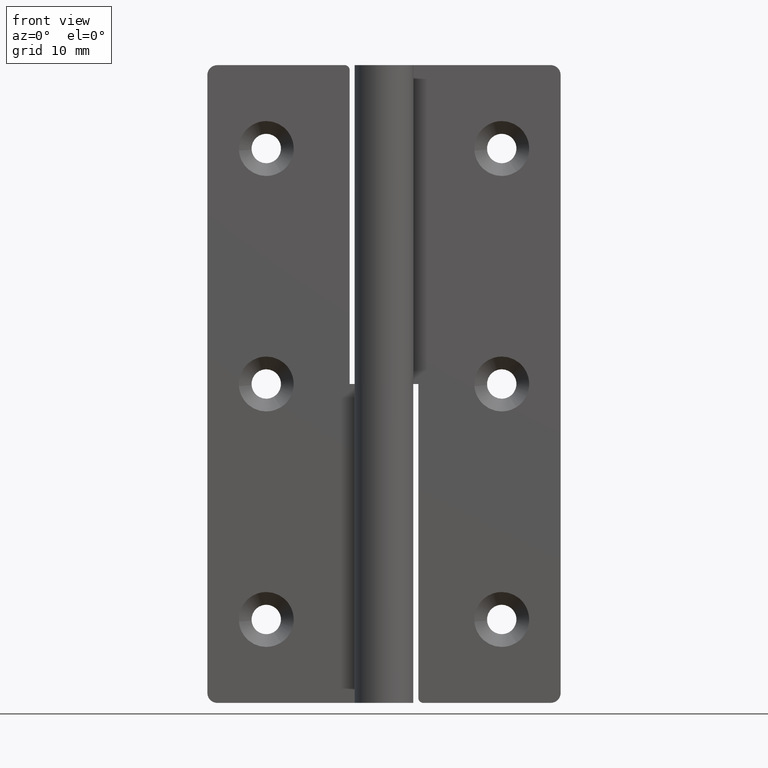
[diagram: clean part render]
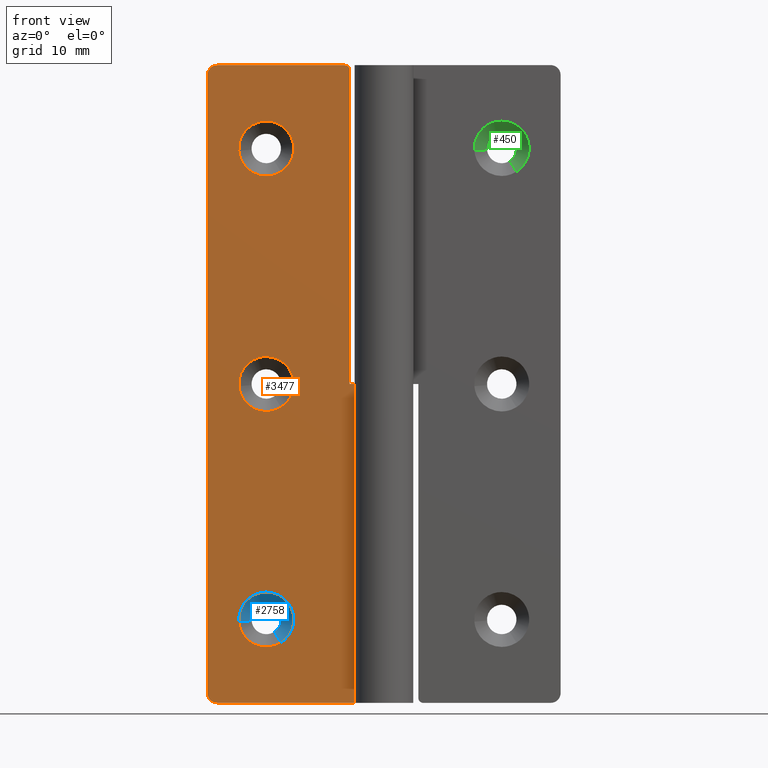
[diagram: same view with three faces highlighted in distinct colors, each labeled with its STEP entity id]
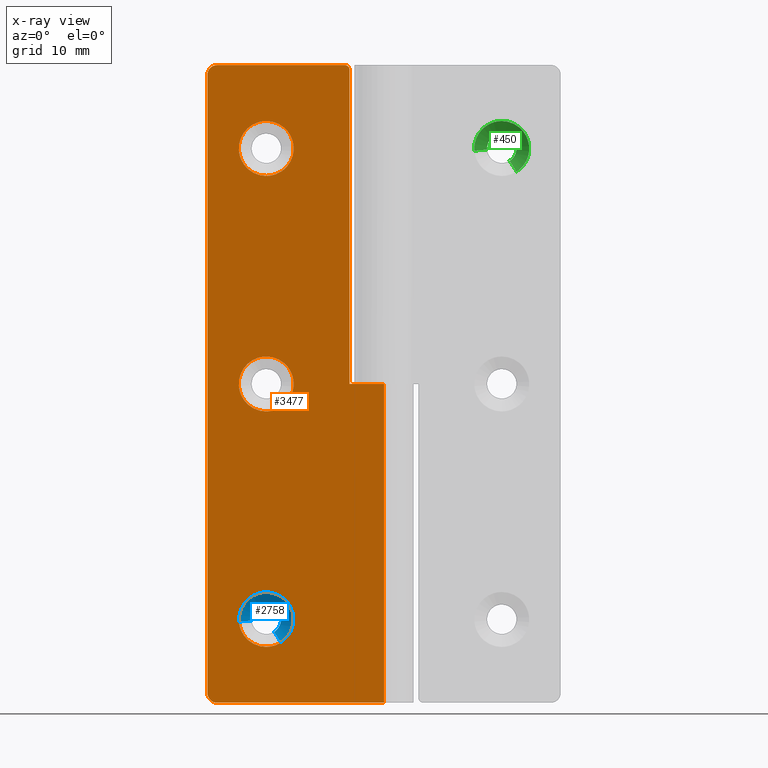
[diagram: x-ray of the same camera — body ghosted, the three highlighted faces saturated]
A machine part, front view with three faces highlighted in distinct colors.
The next image is the same camera in x-ray (body ghosted, the three faces saturated) — at least one of them is partly hidden behind the body in this view.
Their STEP definitions:

[orange] entity #3477 — the highlighted face is a freeform B-spline surface patch.
#1975=CARTESIAN_POINT('',(-10.494017771738090,1.499999999987748,54.139487853243473));
#1976=VERTEX_POINT('',#1975);
#1982=CARTESIAN_POINT('',(-12.0,1.500000000000000,59.300000011920929));
#1983=VERTEX_POINT('',#1982);
#1984=CARTESIAN_POINT('',(-12.0,1.500000000000000,59.300000011920929));
#1985=CARTESIAN_POINT('',(-9.199999988079071,1.500000000000000,59.300000011920943));
#1986=CARTESIAN_POINT('',(-9.199999988079071,1.500000000000000,56.500000000000000));
#1987=CARTESIAN_POINT('',(-9.199999988079071,1.500000000000000,54.965057756923521));
#1988=CARTESIAN_POINT('',(-10.494017771738088,1.499999999987747,54.139487853243466));
#1996=(BOUNDED_CURVE()B_SPLINE_CURVE(2,(#1984,#1985,#1986,#1987,#1988),.UNSPECIFIED.,.F.,.U.)B_SPLINE_CURVE_WITH_KNOTS((3,2,3),(0.0,0.250000000000000,0.407950112602438),.UNSPECIFIED.)CURVE()GEOMETRIC_REPRESENTATION_ITEM()RATIONAL_B_SPLINE_CURVE((1.0,0.707106781186548,1.0,0.814949932431699,0.863729296939413))REPRESENTATION_ITEM(''));
#1997=EDGE_CURVE('',#1983,#1976,#1996,.T.);
#1999=CARTESIAN_POINT('',(-14.791368546357489,1.499999999947906,56.280314530623890));
#2000=VERTEX_POINT('',#1999);
#2001=CARTESIAN_POINT('',(-14.791368546357495,1.499999999947907,56.280314530623890));
#2002=CARTESIAN_POINT('',(-14.800000011920929,1.500000000000000,56.389987699509554));
#2003=CARTESIAN_POINT('',(-14.800000011920931,1.500000000000000,56.500000000000000));
#2004=CARTESIAN_POINT('',(-14.800000011920924,1.500000000000000,59.300000011920943));
#2005=CARTESIAN_POINT('',(-12.0,1.500000000000000,59.300000011920929));
#2013=(BOUNDED_CURVE()B_SPLINE_CURVE(2,(#2001,#2002,#2003,#2004,#2005),.UNSPECIFIED.,.F.,.U.)B_SPLINE_CURVE_WITH_KNOTS((3,2,3),(0.736331300583791,0.750000000000000,1.0),.UNSPECIFIED.)CURVE()GEOMETRIC_REPRESENTATION_ITEM()RATIONAL_B_SPLINE_CURVE((0.969723356069606,0.983986122523972,1.0,0.707106781186548,1.0))REPRESENTATION_ITEM(''));
#2014=EDGE_CURVE('',#2000,#1983,#2013,.T.);
#2118=CARTESIAN_POINT('',(-12.0,1.500000000000000,53.699999988079078));
#2119=VERTEX_POINT('',#2118);
#2120=CARTESIAN_POINT('',(-12.0,1.500000000000000,53.699999988079078));
#2121=CARTESIAN_POINT('',(-14.588293386920791,1.500000000000000,53.699999988079064));
#2122=CARTESIAN_POINT('',(-14.791368546357486,1.499999999947907,56.280314530623890));
#2130=(BOUNDED_CURVE()B_SPLINE_CURVE(2,(#2120,#2121,#2122),.UNSPECIFIED.,.F.,.U.)B_SPLINE_CURVE_WITH_KNOTS((3,3),(0.500000000000000,0.736331300583790),.UNSPECIFIED.)CURVE()GEOMETRIC_REPRESENTATION_ITEM()RATIONAL_B_SPLINE_CURVE((1.0,0.723120658662577,0.969723356069604))REPRESENTATION_ITEM(''));
#2131=EDGE_CURVE('',#2119,#2000,#2130,.T.);
#2133=CARTESIAN_POINT('',(-10.494017771738088,1.499999999987747,54.139487853243466));
#2134=CARTESIAN_POINT('',(-11.182881441209132,1.500000000000001,53.699999988079078));
#2135=CARTESIAN_POINT('',(-12.0,1.500000000000000,53.699999988079078));
#2143=(BOUNDED_CURVE()B_SPLINE_CURVE(2,(#2133,#2134,#2135),.UNSPECIFIED.,.F.,.U.)B_SPLINE_CURVE_WITH_KNOTS((3,3),(0.407950112602438,0.500000000000000),.UNSPECIFIED.)CURVE()GEOMETRIC_REPRESENTATION_ITEM()RATIONAL_B_SPLINE_CURVE((0.863729296939413,0.892156848754848,1.0))REPRESENTATION_ITEM(''));
#2144=EDGE_CURVE('',#1976,#2119,#2143,.T.);
#2319=CARTESIAN_POINT('',(-10.494017771738090,1.499999999987746,30.139487853243470));
#2320=VERTEX_POINT('',#2319);
#2326=CARTESIAN_POINT('',(-12.0,1.500000000000000,35.300000011920943));
#2327=VERTEX_POINT('',#2326);
#2328=CARTESIAN_POINT('',(-12.0,1.500000000000000,35.300000011920943));
#2329=CARTESIAN_POINT('',(-9.199999988079071,1.500000000000000,35.300000011920929));
#2330=CARTESIAN_POINT('',(-9.199999988079071,1.500000000000000,32.500000000000000));
#2331=CARTESIAN_POINT('',(-9.199999988079071,1.500000000000000,30.965057756923510));
#2332=CARTESIAN_POINT('',(-10.494017771738088,1.499999999987746,30.139487853243462));
#2340=(BOUNDED_CURVE()B_SPLINE_CURVE(2,(#2328,#2329,#2330,#2331,#2332),.UNSPECIFIED.,.F.,.U.)B_SPLINE_CURVE_WITH_KNOTS((3,2,3),(0.0,0.250000000000000,0.407950112602438),.UNSPECIFIED.)CURVE()GEOMETRIC_REPRESENTATION_ITEM()RATIONAL_B_SPLINE_CURVE((1.0,0.707106781186548,1.0,0.814949932431699,0.863729296939413))REPRESENTATION_ITEM(''));
#2341=EDGE_CURVE('',#2327,#2320,#2340,.T.);
#2343=CARTESIAN_POINT('',(-14.791368546357489,1.499999999947906,32.280314530623890));
#2344=VERTEX_POINT('',#2343);
#2345=CARTESIAN_POINT('',(-14.791368546357491,1.499999999947906,32.280314530623890));
#2346=CARTESIAN_POINT('',(-14.800000011920927,1.500000000000000,32.389987699509540));
#2347=CARTESIAN_POINT('',(-14.800000011920931,1.500000000000000,32.500000000000000));
#2348=CARTESIAN_POINT('',(-14.800000011920924,1.500000000000000,35.300000011920929));
#2349=CARTESIAN_POINT('',(-12.0,1.500000000000000,35.300000011920943));
#2357=(BOUNDED_CURVE()B_SPLINE_CURVE(2,(#2345,#2346,#2347,#2348,#2349),.UNSPECIFIED.,.F.,.U.)B_SPLINE_CURVE_WITH_KNOTS((3,2,3),(0.736331300583791,0.750000000000000,1.0),.UNSPECIFIED.)CURVE()GEOMETRIC_REPRESENTATION_ITEM()RATIONAL_B_SPLINE_CURVE((0.969723356069606,0.983986122523972,1.0,0.707106781186548,1.0))REPRESENTATION_ITEM(''));
#2358=EDGE_CURVE('',#2344,#2327,#2357,.T.);
#2462=CARTESIAN_POINT('',(-12.0,1.500000000000000,29.699999988079071));
#2463=VERTEX_POINT('',#2462);
#2464=CARTESIAN_POINT('',(-12.0,1.500000000000000,29.699999988079071));
#2465=CARTESIAN_POINT('',(-14.588293386920826,1.500000000000000,29.699999988079064));
#2466=CARTESIAN_POINT('',(-14.791368546357491,1.499999999947906,32.280314530623890));
#2474=(BOUNDED_CURVE()B_SPLINE_CURVE(2,(#2464,#2465,#2466),.UNSPECIFIED.,.F.,.U.)B_SPLINE_CURVE_WITH_KNOTS((3,3),(0.500000000000000,0.736331300583792),.UNSPECIFIED.)CURVE()GEOMETRIC_REPRESENTATION_ITEM()RATIONAL_B_SPLINE_CURVE((1.0,0.723120658662575,0.969723356069608))REPRESENTATION_ITEM(''));
#2475=EDGE_CURVE('',#2463,#2344,#2474,.T.);
#2477=CARTESIAN_POINT('',(-10.494017771738088,1.499999999987746,30.139487853243462));
#2478=CARTESIAN_POINT('',(-11.182881441209130,1.500000000000001,29.699999988079075));
#2479=CARTESIAN_POINT('',(-12.0,1.500000000000000,29.699999988079071));
#2487=(BOUNDED_CURVE()B_SPLINE_CURVE(2,(#2477,#2478,#2479),.UNSPECIFIED.,.F.,.U.)B_SPLINE_CURVE_WITH_KNOTS((3,3),(0.407950112602438,0.500000000000000),.UNSPECIFIED.)CURVE()GEOMETRIC_REPRESENTATION_ITEM()RATIONAL_B_SPLINE_CURVE((0.863729296939413,0.892156848754848,1.0))REPRESENTATION_ITEM(''));
#2488=EDGE_CURVE('',#2320,#2463,#2487,.T.);
#2663=CARTESIAN_POINT('',(-10.494017771738090,1.499999999987748,6.139487853243372));
#2664=VERTEX_POINT('',#2663);
#2670=CARTESIAN_POINT('',(-12.0,1.500000000000000,11.300000011920829));
#2671=VERTEX_POINT('',#2670);
#2672=CARTESIAN_POINT('',(-12.0,1.500000000000000,11.300000011920829));
#2673=CARTESIAN_POINT('',(-9.199999988079071,1.500000000000000,11.300000011920828));
#2674=CARTESIAN_POINT('',(-9.199999988079071,1.500000000000000,8.499999999999901));
#2675=CARTESIAN_POINT('',(-9.199999988079071,1.500000000000000,6.965057756923418));
#2676=CARTESIAN_POINT('',(-10.494017771738090,1.499999999987747,6.139487853243371));
#2684=(BOUNDED_CURVE()B_SPLINE_CURVE(2,(#2672,#2673,#2674,#2675,#2676),.UNSPECIFIED.,.F.,.U.)B_SPLINE_CURVE_WITH_KNOTS((3,2,3),(0.0,0.250000000000000,0.407950112602438),.UNSPECIFIED.)CURVE()GEOMETRIC_REPRESENTATION_ITEM()RATIONAL_B_SPLINE_CURVE((1.0,0.707106781186548,1.0,0.814949932431699,0.863729296939413))REPRESENTATION_ITEM(''));
#2685=EDGE_CURVE('',#2671,#2664,#2684,.T.);
#2687=CARTESIAN_POINT('',(-14.791368546357489,1.499999999947906,8.280314530623793));
#2688=VERTEX_POINT('',#2687);
#2689=CARTESIAN_POINT('',(-14.791368546357496,1.499999999947906,8.280314530623793));
#2690=CARTESIAN_POINT('',(-14.800000011920931,1.500000000000000,8.389987699509451));
#2691=CARTESIAN_POINT('',(-14.800000011920931,1.500000000000000,8.499999999999901));
#2692=CARTESIAN_POINT('',(-14.800000011920924,1.500000000000000,11.300000011920828));
#2693=CARTESIAN_POINT('',(-12.0,1.500000000000000,11.300000011920829));
#2701=(BOUNDED_CURVE()B_SPLINE_CURVE(2,(#2689,#2690,#2691,#2692,#2693),.UNSPECIFIED.,.F.,.U.)B_SPLINE_CURVE_WITH_KNOTS((3,2,3),(0.736331300583791,0.750000000000000,1.0),.UNSPECIFIED.)CURVE()GEOMETRIC_REPRESENTATION_ITEM()RATIONAL_B_SPLINE_CURVE((0.969723356069606,0.983986122523972,1.0,0.707106781186548,1.0))REPRESENTATION_ITEM(''));
#2702=EDGE_CURVE('',#2688,#2671,#2701,.T.);
#2806=CARTESIAN_POINT('',(-12.0,1.500000000000000,5.699999988078970));
#2807=VERTEX_POINT('',#2806);
#2808=CARTESIAN_POINT('',(-12.0,1.500000000000000,5.699999988078970));
#2809=CARTESIAN_POINT('',(-14.588293386920791,1.500000000000000,5.699999988078969));
#2810=CARTESIAN_POINT('',(-14.791368546357496,1.499999999947906,8.280314530623793));
#2818=(BOUNDED_CURVE()B_SPLINE_CURVE(2,(#2808,#2809,#2810),.UNSPECIFIED.,.F.,.U.)B_SPLINE_CURVE_WITH_KNOTS((3,3),(0.500000000000000,0.736331300583790),.UNSPECIFIED.)CURVE()GEOMETRIC_REPRESENTATION_ITEM()RATIONAL_B_SPLINE_CURVE((1.0,0.723120658662577,0.969723356069604))REPRESENTATION_ITEM(''));
#2819=EDGE_CURVE('',#2807,#2688,#2818,.T.);
#2821=CARTESIAN_POINT('',(-10.494017771738090,1.499999999987747,6.139487853243371));
#2822=CARTESIAN_POINT('',(-11.182881441209132,1.500000000000000,5.699999988078970));
#2823=CARTESIAN_POINT('',(-12.0,1.500000000000000,5.699999988078970));
#2831=(BOUNDED_CURVE()B_SPLINE_CURVE(2,(#2821,#2822,#2823),.UNSPECIFIED.,.F.,.U.)B_SPLINE_CURVE_WITH_KNOTS((3,3),(0.407950112602438,0.500000000000000),.UNSPECIFIED.)CURVE()GEOMETRIC_REPRESENTATION_ITEM()RATIONAL_B_SPLINE_CURVE((0.863729296939413,0.892156848754849,1.0))REPRESENTATION_ITEM(''));
#2832=EDGE_CURVE('',#2664,#2807,#2831,.T.);
#2980=CARTESIAN_POINT('',(-3.500000000000000,1.500000000000000,64.500000000000000));
#2981=VERTEX_POINT('',#2980);
#2982=CARTESIAN_POINT('',(-4.0,1.500000000000055,65.0));
#2983=VERTEX_POINT('',#2982);
#2984=CARTESIAN_POINT('',(-3.500000000000000,1.500000000000055,64.500000000000000));
#2985=CARTESIAN_POINT('',(-3.499999999999999,1.500000000000055,65.0));
#2986=CARTESIAN_POINT('',(-4.0,1.500000000000055,65.0));
#2994=(BOUNDED_CURVE()B_SPLINE_CURVE(2,(#2984,#2985,#2986),.UNSPECIFIED.,.F.,.U.)CURVE()GEOMETRIC_REPRESENTATION_ITEM()QUASI_UNIFORM_CURVE()RATIONAL_B_SPLINE_CURVE((1.0,0.707106781186548,1.0))REPRESENTATION_ITEM(''));
#2995=EDGE_CURVE('',#2981,#2983,#2994,.T.);
#3032=CARTESIAN_POINT('',(-5.742883E-016,1.500000000000000,32.500000000000000));
#3033=VERTEX_POINT('',#3032);
#3090=CARTESIAN_POINT('',(-3.500000000000000,1.499999999999946,32.500000000000000));
#3091=VERTEX_POINT('',#3090);
#3097=CARTESIAN_POINT('',(-5.742883E-016,1.500000000000000,32.500000000000000));
#3098=CARTESIAN_POINT('',(-3.500000000000000,1.499999999999946,32.500000000000000));
#3099=QUASI_UNIFORM_CURVE('',1,(#3097,#3098),.UNSPECIFIED.,.F.,.U.);
#3100=EDGE_CURVE('',#3033,#3091,#3099,.T.);
#3116=CARTESIAN_POINT('',(-3.500000000000000,1.499999999999946,32.500000000000000));
#3117=CARTESIAN_POINT('',(-3.500000000000000,1.500000000000000,64.500000000000000));
#3118=QUASI_UNIFORM_CURVE('',1,(#3116,#3117),.UNSPECIFIED.,.F.,.U.);
#3119=EDGE_CURVE('',#3091,#2981,#3118,.T.);
#3139=CARTESIAN_POINT('',(-17.0,1.500000000000000,65.0));
#3140=VERTEX_POINT('',#3139);
#3141=CARTESIAN_POINT('',(-18.0,1.500000000000055,64.0));
#3142=VERTEX_POINT('',#3141);
#3143=CARTESIAN_POINT('',(-17.0,1.500000000000055,65.0));
#3144=CARTESIAN_POINT('',(-18.000000000000007,1.500000000000055,65.0));
#3145=CARTESIAN_POINT('',(-18.0,1.500000000000055,64.0));
#3153=(BOUNDED_CURVE()B_SPLINE_CURVE(2,(#3143,#3144,#3145),.UNSPECIFIED.,.F.,.U.)CURVE()GEOMETRIC_REPRESENTATION_ITEM()QUASI_UNIFORM_CURVE()RATIONAL_B_SPLINE_CURVE((1.0,0.707106781186548,1.0))REPRESENTATION_ITEM(''));
#3154=EDGE_CURVE('',#3140,#3142,#3153,.T.);
#3200=CARTESIAN_POINT('',(-18.0,1.500000000000055,1.0));
#3201=VERTEX_POINT('',#3200);
#3202=CARTESIAN_POINT('',(-17.0,1.500000000000055,0.0));
#3203=VERTEX_POINT('',#3202);
#3204=CARTESIAN_POINT('',(-18.0,1.500000000000055,1.0));
#3205=CARTESIAN_POINT('',(-18.000000000000007,1.500000000000055,0.0));
#3206=CARTESIAN_POINT('',(-17.0,1.500000000000055,0.0));
#3214=(BOUNDED_CURVE()B_SPLINE_CURVE(2,(#3204,#3205,#3206),.UNSPECIFIED.,.F.,.U.)CURVE()GEOMETRIC_REPRESENTATION_ITEM()QUASI_UNIFORM_CURVE()RATIONAL_B_SPLINE_CURVE((1.0,0.707106781186548,1.0))REPRESENTATION_ITEM(''));
#3215=EDGE_CURVE('',#3201,#3203,#3214,.T.);
#3270=CARTESIAN_POINT('',(-5.742883E-016,1.500000000000000,0.0));
#3271=VERTEX_POINT('',#3270);
#3272=CARTESIAN_POINT('',(-5.742883E-016,1.500000000000000,0.0));
#3273=CARTESIAN_POINT('',(-5.742883E-016,1.500000000000000,32.500000000000000));
#3274=QUASI_UNIFORM_CURVE('',1,(#3272,#3273),.UNSPECIFIED.,.F.,.U.);
#3275=EDGE_CURVE('',#3271,#3033,#3274,.T.);
#3386=CARTESIAN_POINT('',(-5.742883E-016,1.500000000000000,0.0));
#3387=CARTESIAN_POINT('',(-17.0,1.500000000000055,0.0));
#3388=QUASI_UNIFORM_CURVE('',1,(#3386,#3387),.UNSPECIFIED.,.F.,.U.);
#3389=EDGE_CURVE('',#3271,#3203,#3388,.T.);
#3408=CARTESIAN_POINT('',(-4.0,1.500000000000055,65.0));
#3409=CARTESIAN_POINT('',(-17.0,1.500000000000000,65.0));
#3410=QUASI_UNIFORM_CURVE('',1,(#3408,#3409),.UNSPECIFIED.,.F.,.U.);
#3411=EDGE_CURVE('',#2983,#3140,#3410,.T.);
#3435=CARTESIAN_POINT('',(-18.0,1.500000000000055,1.0));
#3436=CARTESIAN_POINT('',(-18.0,1.500000000000055,64.0));
#3437=QUASI_UNIFORM_CURVE('',1,(#3435,#3436),.UNSPECIFIED.,.F.,.U.);
#3438=EDGE_CURVE('',#3201,#3142,#3437,.T.);
#3443=CARTESIAN_POINT('',(-18.899099965112509,1.500000000000000,-3.246749874017389));
#3444=CARTESIAN_POINT('',(-18.899099965112509,1.500000000000000,68.246751617453242));
#3445=CARTESIAN_POINT('',(0.899100447910131,1.500000000000000,-3.246749874017389));
#3446=CARTESIAN_POINT('',(0.899100447910131,1.500000000000000,68.246751617453242));
#3447=B_SPLINE_SURFACE_WITH_KNOTS('',1,1,((#3443,#3445),(#3444,#3446)),.UNSPECIFIED.,.F.,.F.,.U.,(2,2),(2,2),(0.0,71.493501491470624),(0.0,19.798200413022641),.UNSPECIFIED.);
#3448=ORIENTED_EDGE('',*,*,#2995,.T.);
#3449=ORIENTED_EDGE('',*,*,#3411,.T.);
#3450=ORIENTED_EDGE('',*,*,#3154,.T.);
#3451=ORIENTED_EDGE('',*,*,#3438,.F.);
#3452=ORIENTED_EDGE('',*,*,#3215,.T.);
#3453=ORIENTED_EDGE('',*,*,#3389,.F.);
#3454=ORIENTED_EDGE('',*,*,#3275,.T.);
#3455=ORIENTED_EDGE('',*,*,#3100,.T.);
#3456=ORIENTED_EDGE('',*,*,#3119,.T.);
#3457=EDGE_LOOP('',(#3448,#3449,#3450,#3451,#3452,#3453,#3454,#3455,#3456));
#3458=FACE_OUTER_BOUND('',#3457,.T.);
#3459=ORIENTED_EDGE('',*,*,#2819,.T.);
#3460=ORIENTED_EDGE('',*,*,#2702,.T.);
#3461=ORIENTED_EDGE('',*,*,#2685,.T.);
#3462=ORIENTED_EDGE('',*,*,#2832,.T.);
#3463=EDGE_LOOP('',(#3459,#3460,#3461,#3462));
#3464=FACE_BOUND('',#3463,.T.);
#3465=ORIENTED_EDGE('',*,*,#2475,.T.);
#3466=ORIENTED_EDGE('',*,*,#2358,.T.);
#3467=ORIENTED_EDGE('',*,*,#2341,.T.);
#3468=ORIENTED_EDGE('',*,*,#2488,.T.);
#3469=EDGE_LOOP('',(#3465,#3466,#3467,#3468));
#3470=FACE_BOUND('',#3469,.T.);
#3471=ORIENTED_EDGE('',*,*,#2131,.T.);
#3472=ORIENTED_EDGE('',*,*,#2014,.T.);
#3473=ORIENTED_EDGE('',*,*,#1997,.T.);
#3474=ORIENTED_EDGE('',*,*,#2144,.T.);
#3475=EDGE_LOOP('',(#3471,#3472,#3473,#3474));
#3476=FACE_BOUND('',#3475,.T.);
#3477=ADVANCED_FACE('',(#3458,#3464,#3470,#3476),#3447,.F.);

[blue] entity #2758 — the highlighted face is a freeform B-spline surface patch.
#2622=CARTESIAN_POINT('',(-11.210703993637848,2.832500012218953,7.262838780047971));
#2623=CARTESIAN_POINT('',(-10.467892759993310,2.832500012218953,7.736744630588095));
#2624=CARTESIAN_POINT('',(-10.537023873950170,2.832500012218953,8.615138718163692));
#2625=CARTESIAN_POINT('',(-10.652162592113957,2.832500012218954,10.078114844213527));
#2626=CARTESIAN_POINT('',(-12.115138718163790,2.832500012218953,9.962976126049735));
#2627=CARTESIAN_POINT('',(-13.578114844213626,2.832500012218954,9.847837407885944));
#2628=CARTESIAN_POINT('',(-13.462976126049840,2.832500012218953,8.384861281836109));
#2629=CARTESIAN_POINT('',(-10.476100616396470,1.466687499694526,6.111404079956803));
#2630=CARTESIAN_POINT('',(-9.041949712349814,1.466687499694526,7.026377458388982));
#2631=CARTESIAN_POINT('',(-9.175421643155882,1.466687499694526,8.722299137743411));
#2632=CARTESIAN_POINT('',(-9.397720780899393,1.466687499694527,11.546877494587530));
#2633=CARTESIAN_POINT('',(-12.222299137743510,1.466687499694526,11.324578356844020));
#2634=CARTESIAN_POINT('',(-15.046877494587624,1.466687499694527,11.102279219100510));
#2635=CARTESIAN_POINT('',(-14.824578356844119,1.466687499694526,8.277700862256390));
#2643=(BOUNDED_SURFACE()B_SPLINE_SURFACE(2,1,((#2622,#2629),(#2623,#2630),(#2624,#2631),(#2625,#2632),(#2626,#2633),(#2627,#2634),(#2628,#2635)),.UNSPECIFIED.,.F.,.F.,.U.)B_SPLINE_SURFACE_WITH_KNOTS((3,2,2,3),(2,2),(0.0,3.192182397415956,7.886568275968835,12.580954154521709),(0.0,1.0),.UNSPECIFIED.)GEOMETRIC_REPRESENTATION_ITEM()RATIONAL_B_SPLINE_SURFACE(((0.872532871172386,0.872532871172386),(0.800832611206852,0.800832611206852),(1.0,1.0),(0.707106781186548,0.707106781186548),(1.0,1.0),(0.707106781186548,0.707106781186548),(1.0,1.0)))REPRESENTATION_ITEM('')SURFACE());
#2644=CARTESIAN_POINT('',(-10.510485754871800,2.800000011920930,8.677051346929908));
#2645=VERTEX_POINT('',#2644);
#2646=CARTESIAN_POINT('',(-11.193223841760410,2.800000011913453,7.235439977025640));
#2647=VERTEX_POINT('',#2646);
#2648=CARTESIAN_POINT('',(-10.510485754871798,2.800000011920930,8.677051346929908));
#2649=CARTESIAN_POINT('',(-10.500000059604650,2.800000011920930,8.588836176171485));
#2650=CARTESIAN_POINT('',(-10.500000059604650,2.800000011920930,8.499999999999901));
#2651=CARTESIAN_POINT('',(-10.500000059604643,2.800000011920930,7.677709548845044));
#2652=CARTESIAN_POINT('',(-11.193223841760407,2.800000011913454,7.235439977025640));
#2660=(BOUNDED_CURVE()B_SPLINE_CURVE(2,(#2648,#2649,#2650,#2651,#2652),.UNSPECIFIED.,.F.,.U.)B_SPLINE_CURVE_WITH_KNOTS((3,2,3),(0.229562473465401,0.250000000000000,0.407950112597463),.UNSPECIFIED.)CURVE()GEOMETRIC_REPRESENTATION_ITEM()RATIONAL_B_SPLINE_CURVE((0.956026754089407,0.976055948274784,1.0,0.814949932437527,0.863729296936340))REPRESENTATION_ITEM(''));
#2661=EDGE_CURVE('',#2645,#2647,#2660,.T.);
#2662=ORIENTED_EDGE('',*,*,#2661,.T.);
#2663=CARTESIAN_POINT('',(-10.494017771738090,1.499999999987748,6.139487853243372));
#2664=VERTEX_POINT('',#2663);
#2665=CARTESIAN_POINT('',(-11.193223841760410,2.800000011913453,7.235439977025640));
#2666=CARTESIAN_POINT('',(-10.494017771738090,1.499999999987748,6.139487853243372));
#2667=QUASI_UNIFORM_CURVE('',1,(#2665,#2666),.UNSPECIFIED.,.F.,.U.);
#2668=EDGE_CURVE('',#2647,#2664,#2667,.T.);
#2669=ORIENTED_EDGE('',*,*,#2668,.T.);
#2670=CARTESIAN_POINT('',(-12.0,1.500000000000000,11.300000011920829));
#2671=VERTEX_POINT('',#2670);
#2672=CARTESIAN_POINT('',(-12.0,1.500000000000000,11.300000011920829));
#2673=CARTESIAN_POINT('',(-9.199999988079071,1.500000000000000,11.300000011920828));
#2674=CARTESIAN_POINT('',(-9.199999988079071,1.500000000000000,8.499999999999901));
#2675=CARTESIAN_POINT('',(-9.199999988079071,1.500000000000000,6.965057756923418));
#2676=CARTESIAN_POINT('',(-10.494017771738090,1.499999999987747,6.139487853243371));
#2684=(BOUNDED_CURVE()B_SPLINE_CURVE(2,(#2672,#2673,#2674,#2675,#2676),.UNSPECIFIED.,.F.,.U.)B_SPLINE_CURVE_WITH_KNOTS((3,2,3),(0.0,0.250000000000000,0.407950112602438),.UNSPECIFIED.)CURVE()GEOMETRIC_REPRESENTATION_ITEM()RATIONAL_B_SPLINE_CURVE((1.0,0.707106781186548,1.0,0.814949932431699,0.863729296939413))REPRESENTATION_ITEM(''));
#2685=EDGE_CURVE('',#2671,#2664,#2684,.T.);
#2686=ORIENTED_EDGE('',*,*,#2685,.F.);
#2687=CARTESIAN_POINT('',(-14.791368546357489,1.499999999947906,8.280314530623793));
#2688=VERTEX_POINT('',#2687);
#2689=CARTESIAN_POINT('',(-14.791368546357496,1.499999999947906,8.280314530623793));
#2690=CARTESIAN_POINT('',(-14.800000011920931,1.500000000000000,8.389987699509451));
#2691=CARTESIAN_POINT('',(-14.800000011920931,1.500000000000000,8.499999999999901));
#2692=CARTESIAN_POINT('',(-14.800000011920924,1.500000000000000,11.300000011920828));
#2693=CARTESIAN_POINT('',(-12.0,1.500000000000000,11.300000011920829));
#2701=(BOUNDED_CURVE()B_SPLINE_CURVE(2,(#2689,#2690,#2691,#2692,#2693),.UNSPECIFIED.,.F.,.U.)B_SPLINE_CURVE_WITH_KNOTS((3,2,3),(0.736331300583791,0.750000000000000,1.0),.UNSPECIFIED.)CURVE()GEOMETRIC_REPRESENTATION_ITEM()RATIONAL_B_SPLINE_CURVE((0.969723356069606,0.983986122523972,1.0,0.707106781186548,1.0))REPRESENTATION_ITEM(''));
#2702=EDGE_CURVE('',#2688,#2671,#2701,.T.);
#2703=ORIENTED_EDGE('',*,*,#2702,.F.);
#2704=CARTESIAN_POINT('',(-13.495375941234011,2.800000011783318,8.382311360032366));
#2705=VERTEX_POINT('',#2704);
#2706=CARTESIAN_POINT('',(-13.495375941234011,2.800000011783318,8.382311360032366));
#2707=CARTESIAN_POINT('',(-14.791368546357489,1.499999999947906,8.280314530623793));
#2708=QUASI_UNIFORM_CURVE('',1,(#2706,#2707),.UNSPECIFIED.,.F.,.U.);
#2709=EDGE_CURVE('',#2705,#2688,#2708,.T.);
#2710=ORIENTED_EDGE('',*,*,#2709,.F.);
#2711=CARTESIAN_POINT('',(-13.497202152989599,2.800000011920930,8.408427193049072));
#2712=VERTEX_POINT('',#2711);
#2713=CARTESIAN_POINT('',(-13.495375941234007,2.800000011783318,8.382311360032366));
#2714=CARTESIAN_POINT('',(-13.496402994277609,2.800000011920930,8.395361307800769));
#2715=CARTESIAN_POINT('',(-13.497202152989606,2.800000011920930,8.408427193049072));
#2723=(BOUNDED_CURVE()B_SPLINE_CURVE(2,(#2713,#2714,#2715),.UNSPECIFIED.,.F.,.U.)B_SPLINE_CURVE_WITH_KNOTS((3,3),(0.736331300393980,0.739332962154929),.UNSPECIFIED.)CURVE()GEOMETRIC_REPRESENTATION_ITEM()RATIONAL_B_SPLINE_CURVE((0.969723355673486,0.972855475218645,0.976072041486659))REPRESENTATION_ITEM(''));
#2724=EDGE_CURVE('',#2705,#2712,#2723,.T.);
#2725=ORIENTED_EDGE('',*,*,#2724,.T.);
#2726=CARTESIAN_POINT('',(-12.0,2.800000011920930,9.999999940395256));
#2727=VERTEX_POINT('',#2726);
#2728=CARTESIAN_POINT('',(-13.497202152989606,2.800000011920930,8.408427193049072));
#2729=CARTESIAN_POINT('',(-13.499999940395352,2.800000011920930,8.454170856494420));
#2730=CARTESIAN_POINT('',(-13.499999940395361,2.800000011920930,8.499999999999901));
#2731=CARTESIAN_POINT('',(-13.499999940395357,2.800000011920930,9.999999940395258));
#2732=CARTESIAN_POINT('',(-12.0,2.800000011920930,9.999999940395256));
#2740=(BOUNDED_CURVE()B_SPLINE_CURVE(2,(#2728,#2729,#2730,#2731,#2732),.UNSPECIFIED.,.F.,.U.)B_SPLINE_CURVE_WITH_KNOTS((3,2,3),(0.739332962154929,0.750000000000000,1.0),.UNSPECIFIED.)CURVE()GEOMETRIC_REPRESENTATION_ITEM()RATIONAL_B_SPLINE_CURVE((0.976072041486659,0.987502787801409,1.0,0.707106781186548,1.0))REPRESENTATION_ITEM(''));
#2741=EDGE_CURVE('',#2712,#2727,#2740,.T.);
#2742=ORIENTED_EDGE('',*,*,#2741,.T.);
#2743=CARTESIAN_POINT('',(-12.0,2.800000011920930,9.999999940395256));
#2744=CARTESIAN_POINT('',(-10.667738264411135,2.800000011920930,9.999999940395258));
#2745=CARTESIAN_POINT('',(-10.510485754871800,2.800000011920930,8.677051346929908));
#2753=(BOUNDED_CURVE()B_SPLINE_CURVE(2,(#2743,#2744,#2745),.UNSPECIFIED.,.F.,.U.)B_SPLINE_CURVE_WITH_KNOTS((3,3),(0.0,0.229562473465401),.UNSPECIFIED.)CURVE()GEOMETRIC_REPRESENTATION_ITEM()RATIONAL_B_SPLINE_CURVE((1.0,0.731050832911764,0.956026754089406))REPRESENTATION_ITEM(''));
#2754=EDGE_CURVE('',#2727,#2645,#2753,.T.);
#2755=ORIENTED_EDGE('',*,*,#2754,.T.);
#2756=EDGE_LOOP('',(#2662,#2669,#2686,#2703,#2710,#2725,#2742,#2755));
#2757=FACE_OUTER_BOUND('',#2756,.T.);
#2758=ADVANCED_FACE('',(#2757),#2643,.F.);

[green] entity #450 — the highlighted face is a freeform B-spline surface patch.
#314=CARTESIAN_POINT('',(12.789296039222011,2.832500012218953,55.262838728542732));
#315=CARTESIAN_POINT('',(13.532107303791166,2.832500012218953,55.736744598812450));
#316=CARTESIAN_POINT('',(13.462976186956260,2.832500012218953,56.615138722957226));
#317=CARTESIAN_POINT('',(13.347837463999028,2.832500012218954,58.078114909913495));
#318=CARTESIAN_POINT('',(11.884861277042770,2.832500012218953,57.962976186956261));
#319=CARTESIAN_POINT('',(10.421885090086510,2.832500012218954,57.847837463999035));
#320=CARTESIAN_POINT('',(10.537023813043740,2.832500012218953,56.384861277042774));
#321=CARTESIAN_POINT('',(13.523899382782032,1.466687499694526,54.111404081244530));
#322=CARTESIAN_POINT('',(14.958050286055572,1.466687499694526,55.026377459183465));
#323=CARTESIAN_POINT('',(14.824578355321460,1.466687499694526,56.722299137623672));
#324=CARTESIAN_POINT('',(14.602279217697788,1.466687499694527,59.546877492945136));
#325=CARTESIAN_POINT('',(11.777700862376330,1.466687499694526,59.324578355321457));
#326=CARTESIAN_POINT('',(8.953122507054868,1.466687499694527,59.102279217697784));
#327=CARTESIAN_POINT('',(9.175421644678542,1.466687499694526,56.277700862376328));
#335=(BOUNDED_SURFACE()B_SPLINE_SURFACE(2,1,((#314,#321),(#315,#322),(#316,#323),(#317,#324),(#318,#325),(#319,#326),(#320,#327)),.UNSPECIFIED.,.F.,.F.,.U.)B_SPLINE_SURFACE_WITH_KNOTS((3,2,2,3),(2,2),(0.0,3.192182395695130,7.886568271717382,12.580954147739630),(0.0,1.0),.UNSPECIFIED.)GEOMETRIC_REPRESENTATION_ITEM()RATIONAL_B_SPLINE_SURFACE(((0.872532871172386,0.872532871172386),(0.800832611206852,0.800832611206852),(1.0,1.0),(0.707106781186548,0.707106781186548),(1.0,1.0),(0.707106781186548,0.707106781186548),(1.0,1.0)))REPRESENTATION_ITEM('')SURFACE());
#336=CARTESIAN_POINT('',(13.489514289519180,2.800000011920930,56.677051352206547));
#337=VERTEX_POINT('',#336);
#338=CARTESIAN_POINT('',(12.806776190298001,2.800000011913452,55.235439926776642));
#339=VERTEX_POINT('',#338);
#340=CARTESIAN_POINT('',(13.489514289519180,2.800000011920930,56.677051352206547));
#341=CARTESIAN_POINT('',(13.500000000000002,2.800000011920930,56.588836179701623));
#342=CARTESIAN_POINT('',(13.500000000000000,2.800000011920930,56.500000000000000));
#343=CARTESIAN_POINT('',(13.500000000000004,2.800000011920929,55.677709516170253));
#344=CARTESIAN_POINT('',(12.806776190298001,2.800000011913451,55.235439926776642));
#352=(BOUNDED_CURVE()B_SPLINE_CURVE(2,(#340,#341,#342,#343,#344),.UNSPECIFIED.,.F.,.U.)B_SPLINE_CURVE_WITH_KNOTS((3,2,3),(0.229562473465401,0.250000000000000,0.407950112597462),.UNSPECIFIED.)CURVE()GEOMETRIC_REPRESENTATION_ITEM()RATIONAL_B_SPLINE_CURVE((0.956026754089407,0.976055948274784,1.0,0.814949932437528,0.863729296936340))REPRESENTATION_ITEM(''));
#353=EDGE_CURVE('',#337,#339,#352,.T.);
#354=ORIENTED_EDGE('',*,*,#353,.T.);
#355=CARTESIAN_POINT('',(13.505982228261910,1.499999999987748,54.139487853243480));
#356=VERTEX_POINT('',#355);
#357=CARTESIAN_POINT('',(12.806776190298001,2.800000011913452,55.235439926776642));
#358=CARTESIAN_POINT('',(13.505982228261910,1.499999999987748,54.139487853243480));
#359=QUASI_UNIFORM_CURVE('',1,(#357,#358),.UNSPECIFIED.,.F.,.U.);
#360=EDGE_CURVE('',#339,#356,#359,.T.);
#361=ORIENTED_EDGE('',*,*,#360,.T.);
#362=CARTESIAN_POINT('',(12.0,1.500000000000000,59.300000011920929));
#363=VERTEX_POINT('',#362);
#364=CARTESIAN_POINT('',(12.0,1.500000000000000,59.300000011920929));
#365=CARTESIAN_POINT('',(14.800000011920924,1.500000000000000,59.300000011920943));
#366=CARTESIAN_POINT('',(14.800000011920931,1.500000000000000,56.500000000000000));
#367=CARTESIAN_POINT('',(14.800000011920933,1.500000000000000,54.965057756923521));
#368=CARTESIAN_POINT('',(13.505982228261917,1.499999999987747,54.139487853243480));
#376=(BOUNDED_CURVE()B_SPLINE_CURVE(2,(#364,#365,#366,#367,#368),.UNSPECIFIED.,.F.,.U.)B_SPLINE_CURVE_WITH_KNOTS((3,2,3),(0.0,0.250000000000000,0.407950112602438),.UNSPECIFIED.)CURVE()GEOMETRIC_REPRESENTATION_ITEM()RATIONAL_B_SPLINE_CURVE((1.0,0.707106781186548,1.0,0.814949932431699,0.863729296939413))REPRESENTATION_ITEM(''));
#377=EDGE_CURVE('',#363,#356,#376,.T.);
#378=ORIENTED_EDGE('',*,*,#377,.F.);
#379=CARTESIAN_POINT('',(9.208631453642509,1.499999999947907,56.280314530623897));
#380=VERTEX_POINT('',#379);
#381=CARTESIAN_POINT('',(9.208631453642509,1.499999999947906,56.280314530623897));
#382=CARTESIAN_POINT('',(9.199999988079071,1.500000000000000,56.389987699509554));
#383=CARTESIAN_POINT('',(9.199999988079071,1.500000000000000,56.500000000000000));
#384=CARTESIAN_POINT('',(9.199999988079071,1.500000000000000,59.300000011920943));
#385=CARTESIAN_POINT('',(12.0,1.500000000000000,59.300000011920929));
#393=(BOUNDED_CURVE()B_SPLINE_CURVE(2,(#381,#382,#383,#384,#385),.UNSPECIFIED.,.F.,.U.)B_SPLINE_CURVE_WITH_KNOTS((3,2,3),(0.736331300583792,0.750000000000000,1.0),.UNSPECIFIED.)CURVE()GEOMETRIC_REPRESENTATION_ITEM()RATIONAL_B_SPLINE_CURVE((0.969723356069608,0.983986122523973,1.0,0.707106781186548,1.0))REPRESENTATION_ITEM(''));
#394=EDGE_CURVE('',#380,#363,#393,.T.);
#395=ORIENTED_EDGE('',*,*,#394,.F.);
#396=CARTESIAN_POINT('',(10.504623999345091,2.800000011783319,56.382311355355903));
#397=VERTEX_POINT('',#396);
#398=CARTESIAN_POINT('',(10.504623999345091,2.800000011783319,56.382311355355903));
#399=CARTESIAN_POINT('',(9.208631453642509,1.499999999947907,56.280314530623897));
#400=QUASI_UNIFORM_CURVE('',1,(#398,#399),.UNSPECIFIED.,.F.,.U.);
#401=EDGE_CURVE('',#397,#380,#400,.T.);
#402=ORIENTED_EDGE('',*,*,#401,.F.);
#403=CARTESIAN_POINT('',(10.502797802390299,2.800000011920930,56.408427190320097));
#404=VERTEX_POINT('',#403);
#405=CARTESIAN_POINT('',(10.504623999345094,2.800000011783319,56.382311355355895));
#406=CARTESIAN_POINT('',(10.503596946260677,2.800000011920931,56.395361303642858));
#407=CARTESIAN_POINT('',(10.502797802390296,2.800000011920930,56.408427190320104));
#415=(BOUNDED_CURVE()B_SPLINE_CURVE(2,(#405,#406,#407),.UNSPECIFIED.,.F.,.U.)B_SPLINE_CURVE_WITH_KNOTS((3,3),(0.736331300393971,0.739332962154930),.UNSPECIFIED.)CURVE()GEOMETRIC_REPRESENTATION_ITEM()RATIONAL_B_SPLINE_CURVE((0.969723355673466,0.972855475218637,0.976072041486663))REPRESENTATION_ITEM(''));
#416=EDGE_CURVE('',#397,#404,#415,.T.);
#417=ORIENTED_EDGE('',*,*,#416,.T.);
#418=CARTESIAN_POINT('',(12.0,2.800000011920930,58.0));
#419=VERTEX_POINT('',#418);
#420=CARTESIAN_POINT('',(10.502797802390294,2.800000011920930,56.408427190320097));
#421=CARTESIAN_POINT('',(10.500000000000005,2.800000011920930,56.454170854673436));
#422=CARTESIAN_POINT('',(10.500000000000000,2.800000011920930,56.500000000000000));
#423=CARTESIAN_POINT('',(10.500000000000002,2.800000011920930,58.0));
#424=CARTESIAN_POINT('',(12.0,2.800000011920930,58.0));
#432=(BOUNDED_CURVE()B_SPLINE_CURVE(2,(#420,#421,#422,#423,#424),.UNSPECIFIED.,.F.,.U.)B_SPLINE_CURVE_WITH_KNOTS((3,2,3),(0.739332962154930,0.750000000000000,1.0),.UNSPECIFIED.)CURVE()GEOMETRIC_REPRESENTATION_ITEM()RATIONAL_B_SPLINE_CURVE((0.976072041486662,0.987502787801410,1.0,0.707106781186548,1.0))REPRESENTATION_ITEM(''));
#433=EDGE_CURVE('',#404,#419,#432,.T.);
#434=ORIENTED_EDGE('',*,*,#433,.T.);
#435=CARTESIAN_POINT('',(12.0,2.800000011920930,58.0));
#436=CARTESIAN_POINT('',(13.332261788528189,2.800000011920930,57.999999999999993));
#437=CARTESIAN_POINT('',(13.489514289519184,2.800000011920930,56.677051352206547));
#445=(BOUNDED_CURVE()B_SPLINE_CURVE(2,(#435,#436,#437),.UNSPECIFIED.,.F.,.U.)B_SPLINE_CURVE_WITH_KNOTS((3,3),(0.0,0.229562473465401),.UNSPECIFIED.)CURVE()GEOMETRIC_REPRESENTATION_ITEM()RATIONAL_B_SPLINE_CURVE((1.0,0.731050832911764,0.956026754089406))REPRESENTATION_ITEM(''));
#446=EDGE_CURVE('',#419,#337,#445,.T.);
#447=ORIENTED_EDGE('',*,*,#446,.T.);
#448=EDGE_LOOP('',(#354,#361,#378,#395,#402,#417,#434,#447));
#449=FACE_OUTER_BOUND('',#448,.T.);
#450=ADVANCED_FACE('',(#449),#335,.F.);